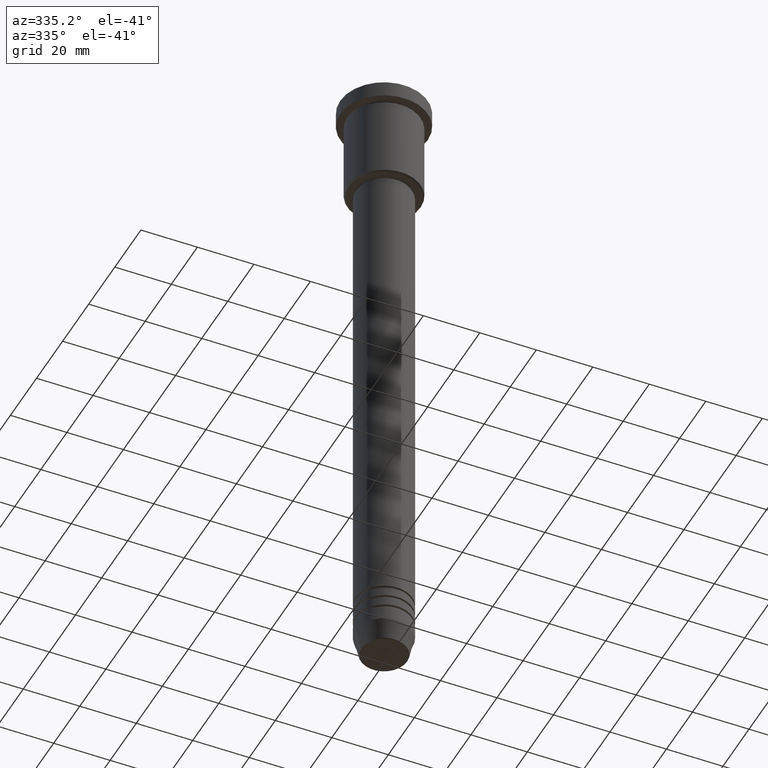
[diagram: clean part render]
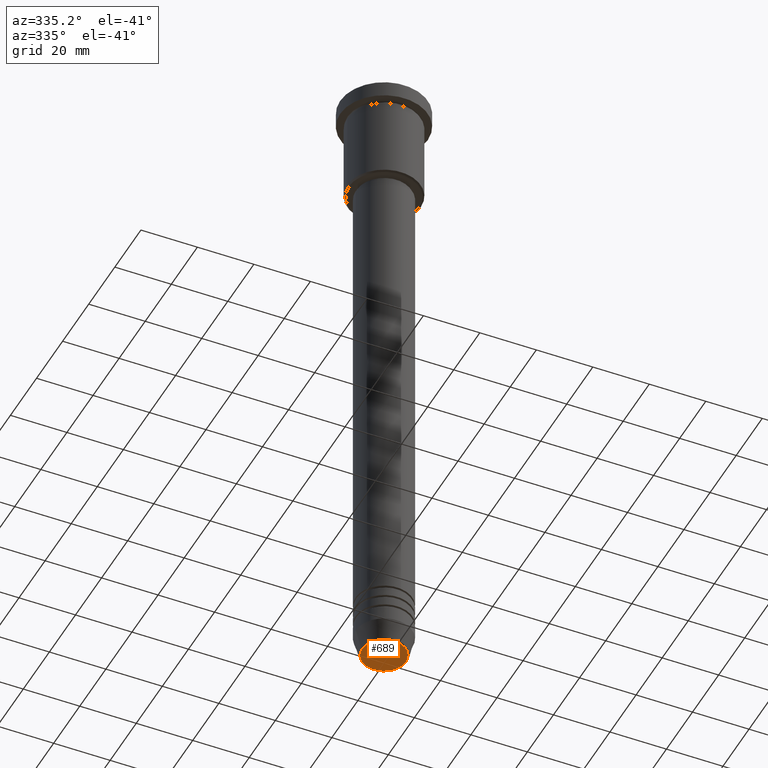
[diagram: same view with one face highlighted and labeled with its STEP entity id]
A machine part, auxiliary view. The second image highlights one B-rep face of the part: STEP entity #689.
In plain terms, the highlighted planar face has unit normal (0, -0, 1).
Its self-contained STEP definition (entity closure, byte-faithful):
#32 = CARTESIAN_POINT ( 'NONE',  ( 0.000000000000000000, 0.000000000000000000, -231.0000000000000284 ) ) ;
#113 = EDGE_LOOP ( 'NONE', ( #285, #760 ) ) ;
#115 = VERTEX_POINT ( 'NONE', #364 ) ;
#134 = DIRECTION ( 'NONE',  ( 0.000000000000000000, 0.000000000000000000, -1.000000000000000000 ) ) ;
#180 = AXIS2_PLACEMENT_3D ( 'NONE', #1138, #134, #509 ) ;
#187 = FACE_OUTER_BOUND ( 'NONE', #113, .T. ) ;
#195 = DIRECTION ( 'NONE',  ( 1.000000000000000000, 0.000000000000000000, 0.000000000000000000 ) ) ;
#237 = CIRCLE ( 'NONE', #180, 7.740692158992660055 ) ;
#285 = ORIENTED_EDGE ( 'NONE', *, *, #432, .T. ) ;
#364 = CARTESIAN_POINT ( 'NONE',  ( 7.740692158992660055, 0.000000000000000000, -231.0000000000000284 ) ) ;
#389 = CARTESIAN_POINT ( 'NONE',  ( 0.000000000000000000, 0.000000000000000000, -231.0000000000000284 ) ) ;
#432 = EDGE_CURVE ( 'NONE', #115, #671, #237, .T. ) ;
#509 = DIRECTION ( 'NONE',  ( 1.000000000000000000, 0.000000000000000000, 0.000000000000000000 ) ) ;
#515 = CIRCLE ( 'NONE', #754, 7.740692158992660055 ) ;
#557 = PLANE ( 'NONE',  #980 ) ;
#580 = DIRECTION ( 'NONE',  ( 1.000000000000000000, 0.000000000000000000, 0.000000000000000000 ) ) ;
#653 = CARTESIAN_POINT ( 'NONE',  ( -7.740692158992660055, 9.775343368540039135E-16, -231.0000000000000284 ) ) ;
#655 = EDGE_CURVE ( 'NONE', #671, #115, #515, .T. ) ;
#671 = VERTEX_POINT ( 'NONE', #653 ) ;
#689 = ADVANCED_FACE ( 'NONE', ( #187 ), #557, .F. ) ;
#743 = DIRECTION ( 'NONE',  ( 0.000000000000000000, -0.000000000000000000, 1.000000000000000000 ) ) ;
#754 = AXIS2_PLACEMENT_3D ( 'NONE', #32, #933, #580 ) ;
#760 = ORIENTED_EDGE ( 'NONE', *, *, #655, .T. ) ;
#933 = DIRECTION ( 'NONE',  ( 0.000000000000000000, 0.000000000000000000, -1.000000000000000000 ) ) ;
#980 = AXIS2_PLACEMENT_3D ( 'NONE', #389, #743, #195 ) ;
#1138 = CARTESIAN_POINT ( 'NONE',  ( 0.000000000000000000, 0.000000000000000000, -231.0000000000000284 ) ) ;